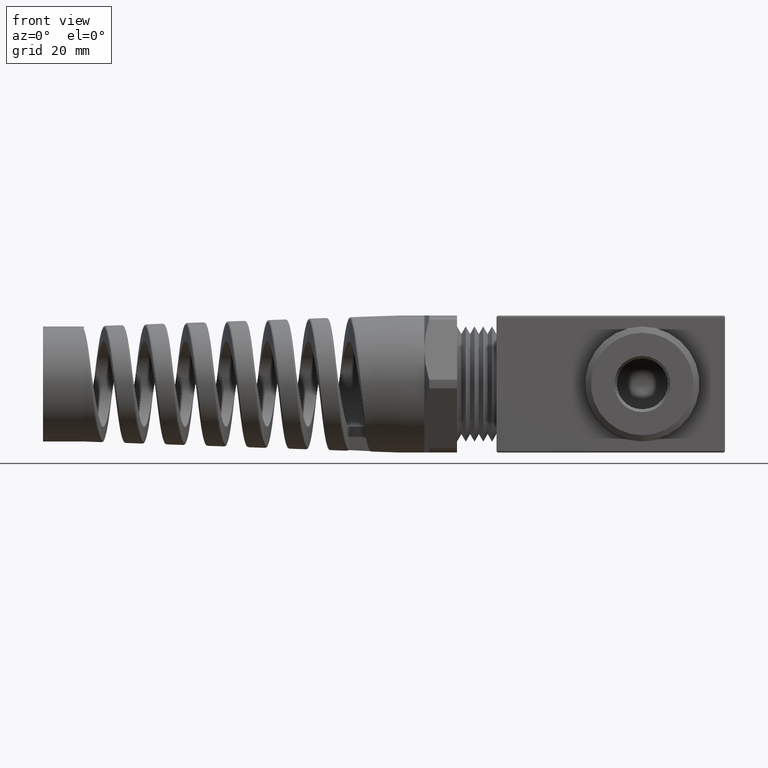
[diagram: clean part render]
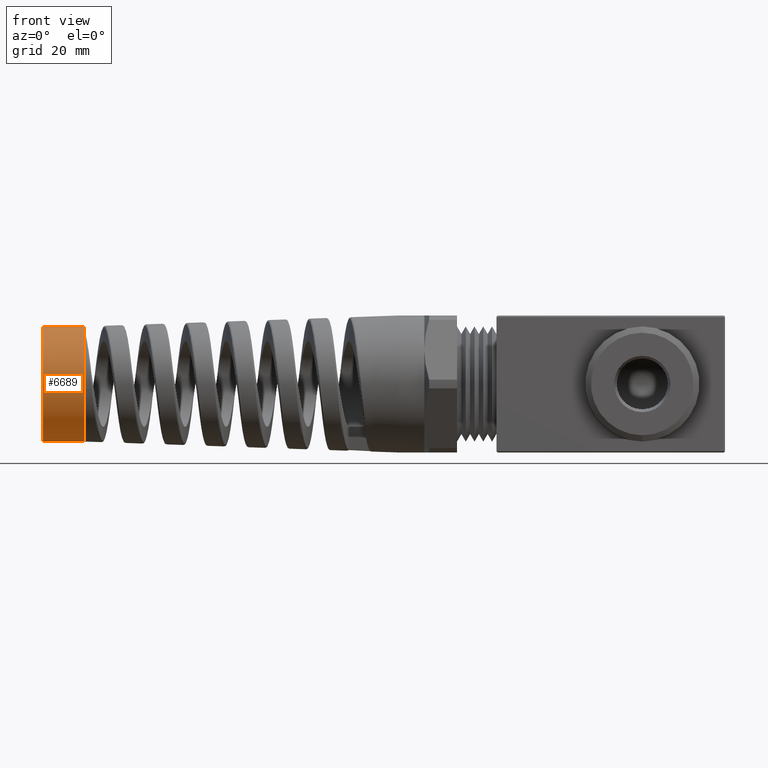
[diagram: same view with one face highlighted and labeled with its STEP entity id]
A machine part, front view. The second image highlights one B-rep face of the part: STEP entity #6689.
In plain terms, the highlighted cylindrical surface (partial cylindrical patch) has radius 10.0228 mm, axis along (1, 0, 0).
Its self-contained STEP definition (entity closure, byte-faithful):
#409 = DIRECTION ( 'NONE',  ( 0.0000000000000000000, 0.0000000000000000000, -1.000000000000000000 ) ) ;
#410 = DIRECTION ( 'NONE',  ( 1.000000000000000000, 0.0000000000000000000, 0.0000000000000000000 ) ) ;
#411 = CARTESIAN_POINT ( 'NONE',  ( -3.111999999999998800, 0.0000000000000000000, 0.0000000000000000000 ) ) ;
#412 = AXIS2_PLACEMENT_3D ( 'NONE', #411, #410, #409 ) ;
#414 = CYLINDRICAL_SURFACE ( 'NONE', #412, 0.3945990745134808600 ) ;
#415 = FACE_OUTER_BOUND ( 'NONE', #6690, .T. ) ;
#511 = DIRECTION ( 'NONE',  ( 0.0000000000000000000, 0.0000000000000000000, 1.000000000000000000 ) ) ;
#512 = DIRECTION ( 'NONE',  ( -1.000000000000000000, 0.0000000000000000000, 0.0000000000000000000 ) ) ;
#513 = CARTESIAN_POINT ( 'NONE',  ( -2.831199999999999100, 0.0000000000000000000, 0.0000000000000000000 ) ) ;
#514 = AXIS2_PLACEMENT_3D ( 'NONE', #513, #512, #511 ) ;
#515 = CIRCLE ( 'NONE', #514, 0.3945990745134808600 ) ;
#5696 = VERTEX_POINT ( 'NONE', #11260 ) ;
#5721 = VERTEX_POINT ( 'NONE', #11196 ) ;
#5722 = VERTEX_POINT ( 'NONE', #11195 ) ;
#5724 = EDGE_CURVE ( 'NONE', #5721, #5696, #11194, .T. ) ;
#6607 = VERTEX_POINT ( 'NONE', #13357 ) ;
#6609 = EDGE_CURVE ( 'NONE', #5722, #6607, #13372, .T. ) ;
#6613 = EDGE_CURVE ( 'NONE', #5722, #5721, #13491, .T. ) ;
#6664 = ORIENTED_EDGE ( 'NONE', *, *, #6609, .T. ) ;
#6665 = ORIENTED_EDGE ( 'NONE', *, *, #6732, .T. ) ;
#6689 = ADVANCED_FACE ( 'NONE', ( #415 ), #414, .T. ) ;
#6690 = EDGE_LOOP ( 'NONE', ( #6742, #6743, #6664, #6665 ) ) ;
#6732 = EDGE_CURVE ( 'NONE', #6607, #5696, #515, .T. ) ;
#6742 = ORIENTED_EDGE ( 'NONE', *, *, #5724, .F. ) ;
#6743 = ORIENTED_EDGE ( 'NONE', *, *, #6613, .F. ) ;
#11193 = CARTESIAN_POINT ( 'NONE',  ( -3.111999999999998800, 4.832444935494423000E-017, 0.3945990745134808600 ) ) ;
#11194 = LINE ( 'NONE', #11193, #11296 ) ;
#11195 = CARTESIAN_POINT ( 'NONE',  ( -3.111999999999998800, 0.0000000000000000000, -0.3945990745134808600 ) ) ;
#11196 = CARTESIAN_POINT ( 'NONE',  ( -3.111999999999998800, 4.832444935494423000E-017, 0.3945990745134808600 ) ) ;
#11260 = CARTESIAN_POINT ( 'NONE',  ( -2.831199999999999100, 4.832444935494423000E-017, 0.3945990745134808600 ) ) ;
#11295 = DIRECTION ( 'NONE',  ( 1.000000000000000000, 0.0000000000000000000, 0.0000000000000000000 ) ) ;
#11296 = VECTOR ( 'NONE', #11295, 39.37007874015748100 ) ;
#13334 = DIRECTION ( 'NONE',  ( 1.000000000000000000, 0.0000000000000000000, 0.0000000000000000000 ) ) ;
#13357 = CARTESIAN_POINT ( 'NONE',  ( -2.831199999999999100, 0.0000000000000000000, -0.3945990745134808600 ) ) ;
#13358 = VECTOR ( 'NONE', #13334, 39.37007874015748100 ) ;
#13360 = CARTESIAN_POINT ( 'NONE',  ( -3.111999999999998800, 0.0000000000000000000, -0.3945990745134808600 ) ) ;
#13372 = LINE ( 'NONE', #13360, #13358 ) ;
#13491 = CIRCLE ( 'NONE', #13560, 0.3945990745134808600 ) ;
#13496 = CARTESIAN_POINT ( 'NONE',  ( -3.111999999999998800, 0.0000000000000000000, 0.0000000000000000000 ) ) ;
#13524 = DIRECTION ( 'NONE',  ( -1.000000000000000000, 0.0000000000000000000, 0.0000000000000000000 ) ) ;
#13526 = DIRECTION ( 'NONE',  ( 0.0000000000000000000, 0.0000000000000000000, 1.000000000000000000 ) ) ;
#13560 = AXIS2_PLACEMENT_3D ( 'NONE', #13496, #13524, #13526 ) ;